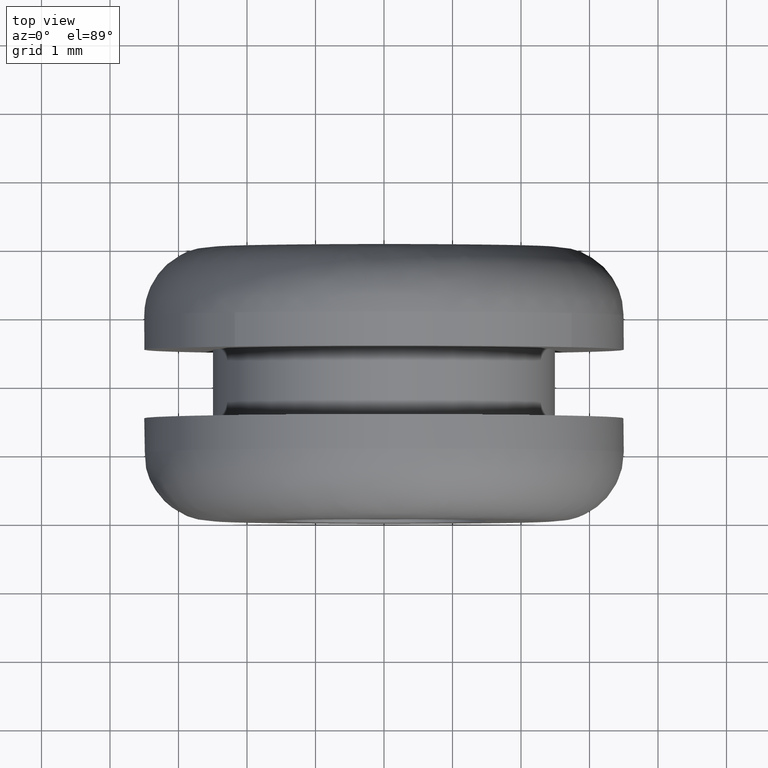
[diagram: clean part render]
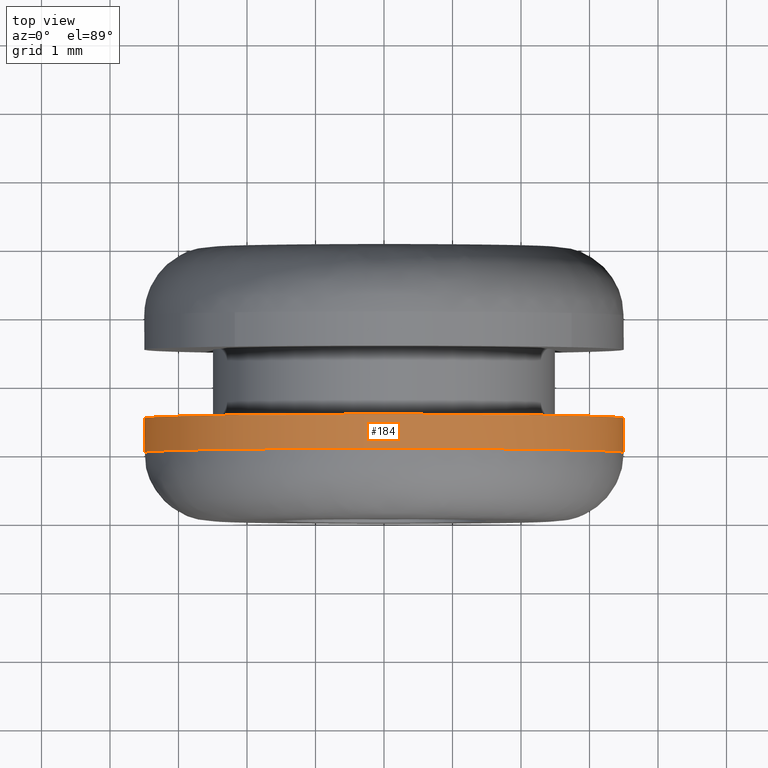
[diagram: same view with one face highlighted and labeled with its STEP entity id]
A machine part, top view. The second image highlights one B-rep face of the part: STEP entity #184.
In plain terms, the highlighted face is a freeform B-spline surface patch.
Its self-contained STEP definition (entity closure, byte-faithful):
#44=CARTESIAN_POINT('',(1.899551015351208,1.512500000000156,-2.939677863317372));
#45=CARTESIAN_POINT('',(2.069834292864542,1.512500000000156,-2.829644795839438));
#46=CARTESIAN_POINT('',(2.226273770972173,1.512500000000156,-2.700686041857019));
#47=CARTESIAN_POINT('',(4.926959812829193,1.512500000000157,-0.474412270884846));
#48=CARTESIAN_POINT('',(2.700686041857019,1.512500000000156,2.226273770972173));
#49=CARTESIAN_POINT('',(0.474412270884846,1.512500000000157,4.926959812829193));
#50=CARTESIAN_POINT('',(-2.226273770972173,1.512500000000156,2.700686041857018));
#51=CARTESIAN_POINT('',(-4.926959812829193,1.512500000000157,0.474412270884845));
#52=CARTESIAN_POINT('',(-2.700686041857019,1.512500000000156,-2.226273770972174));
#53=CARTESIAN_POINT('',(1.899551015351208,0.987187499993608,-2.939677863317372));
#54=CARTESIAN_POINT('',(2.069834292864542,0.987187499993608,-2.829644795839438));
#55=CARTESIAN_POINT('',(2.226273770972173,0.987187499993608,-2.700686041857019));
#56=CARTESIAN_POINT('',(4.926959812829193,0.987187499993608,-0.474412270884846));
#57=CARTESIAN_POINT('',(2.700686041857019,0.987187499993608,2.226273770972173));
#58=CARTESIAN_POINT('',(0.474412270884846,0.987187499993608,4.926959812829193));
#59=CARTESIAN_POINT('',(-2.226273770972173,0.987187499993608,2.700686041857018));
#60=CARTESIAN_POINT('',(-4.926959812829193,0.987187499993608,0.474412270884845));
#61=CARTESIAN_POINT('',(-2.700686041857019,0.987187499993608,-2.226273770972174));
#69=(BOUNDED_SURFACE()B_SPLINE_SURFACE(2,1,((#44,#53),(#45,#54),(#46,#55),(#47,#56),(#48,#57),(#49,#58),(#50,#59),(#51,#60),(#52,#61)),.UNSPECIFIED.,.F.,.F.,.U.)B_SPLINE_SURFACE_WITH_KNOTS((3,2,2,2,3),(2,2),(0.0,0.463919189857866,6.262909063081196,12.061898936304530,17.860888809527850),(0.0,1.0),.UNSPECIFIED.)GEOMETRIC_REPRESENTATION_ITEM()RATIONAL_B_SPLINE_SURFACE(((0.956886118190660,0.956886118190660),(0.976568542494924,0.976568542494924),(1.0,1.0),(0.707106781186548,0.707106781186548),(1.0,1.0),(0.707106781186548,0.707106781186548),(1.0,1.0),(0.707106781186548,0.707106781186548),(1.0,1.0)))REPRESENTATION_ITEM('')SURFACE());
#70=CARTESIAN_POINT('',(1.899550902462815,0.999999999998998,-2.939677936263048));
#71=VERTEX_POINT('',#70);
#72=CARTESIAN_POINT('',(3.499723654713332,0.999999999993827,-0.043981139593659));
#73=VERTEX_POINT('',#72);
#74=CARTESIAN_POINT('',(1.899550902462815,0.999999999998998,-2.939677936263049));
#75=CARTESIAN_POINT('',(3.476136032049741,0.999999999997180,-1.920925706134955));
#76=CARTESIAN_POINT('',(3.499723654713332,0.999999999993827,-0.043981139593659));
#84=(BOUNDED_CURVE()B_SPLINE_CURVE(2,(#74,#75,#76),.UNSPECIFIED.,.F.,.U.)B_SPLINE_CURVE_WITH_KNOTS((3,3),(0.092934731225705,0.247784295921535),.UNSPECIFIED.)CURVE()GEOMETRIC_REPRESENTATION_ITEM()RATIONAL_B_SPLINE_CURVE((0.863190106682967,0.816652486740030,0.994854295643567))REPRESENTATION_ITEM(''));
#85=EDGE_CURVE('',#71,#73,#84,.T.);
#86=ORIENTED_EDGE('',*,*,#85,.F.);
#87=CARTESIAN_POINT('',(1.899550911907788,1.500000000000000,-2.939677930160084));
#88=VERTEX_POINT('',#87);
#89=CARTESIAN_POINT('',(1.899550911907788,1.500000000000000,-2.939677930160084));
#90=CARTESIAN_POINT('',(1.899550902462815,0.999999999998998,-2.939677936263048));
#91=QUASI_UNIFORM_CURVE('',1,(#89,#90),.UNSPECIFIED.,.F.,.U.);
#92=EDGE_CURVE('',#88,#71,#91,.T.);
#93=ORIENTED_EDGE('',*,*,#92,.F.);
#94=CARTESIAN_POINT('',(0.0,1.500000000000000,3.500000000000000));
#95=VERTEX_POINT('',#94);
#96=CARTESIAN_POINT('',(1.899550911907787,1.500000000000000,-2.939677930160083));
#97=CARTESIAN_POINT('',(3.500000000000000,1.500000000000000,-1.905505356738358));
#98=CARTESIAN_POINT('',(3.500000000000000,1.500000000000000,-3.061516E-016));
#99=CARTESIAN_POINT('',(3.500000000000000,1.500000000000000,3.500000000000000));
#100=CARTESIAN_POINT('',(0.0,1.500000000000000,3.500000000000000));
#108=(BOUNDED_CURVE()B_SPLINE_CURVE(2,(#96,#97,#98,#99,#100),.UNSPECIFIED.,.F.,.U.)B_SPLINE_CURVE_WITH_KNOTS((3,2,3),(0.092934732206239,0.250000000000000,0.500000000000000),.UNSPECIFIED.)CURVE()GEOMETRIC_REPRESENTATION_ITEM()RATIONAL_B_SPLINE_CURVE((0.863190106093599,0.815986592608353,1.0,0.707106781186547,1.0))REPRESENTATION_ITEM(''));
#109=EDGE_CURVE('',#88,#95,#108,.T.);
#110=ORIENTED_EDGE('',*,*,#109,.T.);
#111=CARTESIAN_POINT('',(-2.700686089596179,1.500000000000000,-2.226273713059941));
#112=VERTEX_POINT('',#111);
#113=CARTESIAN_POINT('',(0.0,1.500000000000000,3.500000000000000));
#114=CARTESIAN_POINT('',(-3.500000000000000,1.500000000000000,3.500000000000000));
#115=CARTESIAN_POINT('',(-3.500000000000000,1.500000000000000,-3.061516E-016));
#116=CARTESIAN_POINT('',(-3.499999999999999,1.500000000000000,-1.256628318292117));
#117=CARTESIAN_POINT('',(-2.700686089596178,1.500000000000000,-2.226273713059940));
#125=(BOUNDED_CURVE()B_SPLINE_CURVE(2,(#113,#114,#115,#116,#117),.UNSPECIFIED.,.F.,.U.)B_SPLINE_CURVE_WITH_KNOTS((3,2,3),(0.500000000000000,0.750000000000000,0.860504619373458),.UNSPECIFIED.)CURVE()GEOMETRIC_REPRESENTATION_ITEM()RATIONAL_B_SPLINE_CURVE((1.0,0.707106781186547,1.0,0.870535785351809,0.855522720801075))REPRESENTATION_ITEM(''));
#126=EDGE_CURVE('',#95,#112,#125,.T.);
#127=ORIENTED_EDGE('',*,*,#126,.T.);
#128=CARTESIAN_POINT('',(-2.700686205911196,0.999999999999998,-2.226273571958513));
#129=VERTEX_POINT('',#128);
#130=CARTESIAN_POINT('',(-2.700686089596179,1.500000000000000,-2.226273713059941));
#131=CARTESIAN_POINT('',(-2.700686205911196,0.999999999999998,-2.226273571958513));
#132=QUASI_UNIFORM_CURVE('',1,(#130,#131),.UNSPECIFIED.,.F.,.U.);
#133=EDGE_CURVE('',#112,#129,#132,.T.);
#134=ORIENTED_EDGE('',*,*,#133,.T.);
#135=CARTESIAN_POINT('',(-3.491479858441498,0.999999999993767,0.244066380514253));
#136=VERTEX_POINT('',#135);
#137=CARTESIAN_POINT('',(-3.491479858441499,0.999999999993767,0.244066380514253));
#138=CARTESIAN_POINT('',(-3.500000000000000,1.0,0.122181905561697));
#139=CARTESIAN_POINT('',(-3.500000000000000,1.0,-3.061516E-016));
#140=CARTESIAN_POINT('',(-3.500000000000000,1.0,-1.256628111856989));
#141=CARTESIAN_POINT('',(-2.700686205911195,0.999999999999998,-2.226273571958514));
#149=(BOUNDED_CURVE()B_SPLINE_CURVE(2,(#137,#138,#139,#140,#141),.UNSPECIFIED.,.F.,.U.)B_SPLINE_CURVE_WITH_KNOTS((3,2,3),(0.737833686535114,0.750000000000000,0.860504603570302),.UNSPECIFIED.)CURVE()GEOMETRIC_REPRESENTATION_ITEM()RATIONAL_B_SPLINE_CURVE((0.972879876387024,0.985746277152705,1.0,0.870535803866358,0.855522725095084))REPRESENTATION_ITEM(''));
#150=EDGE_CURVE('',#136,#129,#149,.T.);
#151=ORIENTED_EDGE('',*,*,#150,.F.);
#152=CARTESIAN_POINT('',(0.0,1.0,3.500000000000000));
#153=VERTEX_POINT('',#152);
#154=CARTESIAN_POINT('',(0.0,1.0,3.500000000000000));
#155=CARTESIAN_POINT('',(-3.263878965432774,1.0,3.499999999999999));
#156=CARTESIAN_POINT('',(-3.491479858441499,0.999999999993767,0.244066380514253));
#164=(BOUNDED_CURVE()B_SPLINE_CURVE(2,(#154,#155,#156),.UNSPECIFIED.,.F.,.U.)B_SPLINE_CURVE_WITH_KNOTS((3,3),(0.500000000000000,0.737833686535114),.UNSPECIFIED.)CURVE()GEOMETRIC_REPRESENTATION_ITEM()RATIONAL_B_SPLINE_CURVE((1.0,0.721360504033843,0.972879876387023))REPRESENTATION_ITEM(''));
#165=EDGE_CURVE('',#153,#136,#164,.T.);
#166=ORIENTED_EDGE('',*,*,#165,.F.);
#167=CARTESIAN_POINT('',(3.499723654713332,0.999999999993827,-0.043981139593659));
#168=CARTESIAN_POINT('',(3.500000000000000,1.0,-0.021991437973539));
#169=CARTESIAN_POINT('',(3.500000000000000,1.0,-3.061516E-016));
#170=CARTESIAN_POINT('',(3.500000000000000,1.0,3.500000000000000));
#171=CARTESIAN_POINT('',(0.0,1.0,3.500000000000000));
#179=(BOUNDED_CURVE()B_SPLINE_CURVE(2,(#167,#168,#169,#170,#171),.UNSPECIFIED.,.F.,.U.)B_SPLINE_CURVE_WITH_KNOTS((3,2,3),(0.247784295921535,0.250000000000000,0.500000000000000),.UNSPECIFIED.)CURVE()GEOMETRIC_REPRESENTATION_ITEM()RATIONAL_B_SPLINE_CURVE((0.994854295643567,0.997404141202081,1.0,0.707106781186547,1.0))REPRESENTATION_ITEM(''));
#180=EDGE_CURVE('',#73,#153,#179,.T.);
#181=ORIENTED_EDGE('',*,*,#180,.F.);
#182=EDGE_LOOP('',(#86,#93,#110,#127,#134,#151,#166,#181));
#183=FACE_OUTER_BOUND('',#182,.T.);
#184=ADVANCED_FACE('',(#183),#69,.T.);